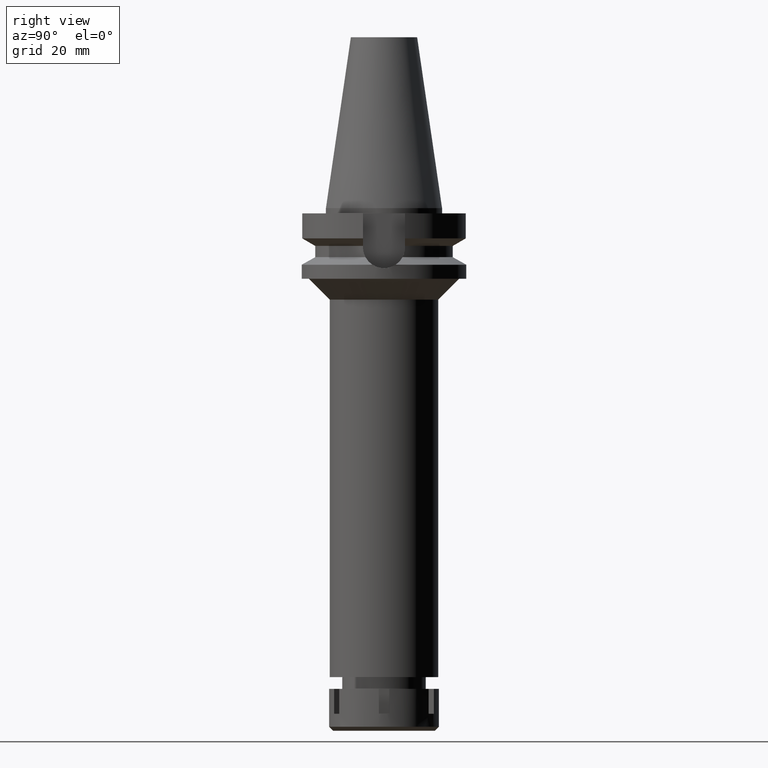
[diagram: clean part render]
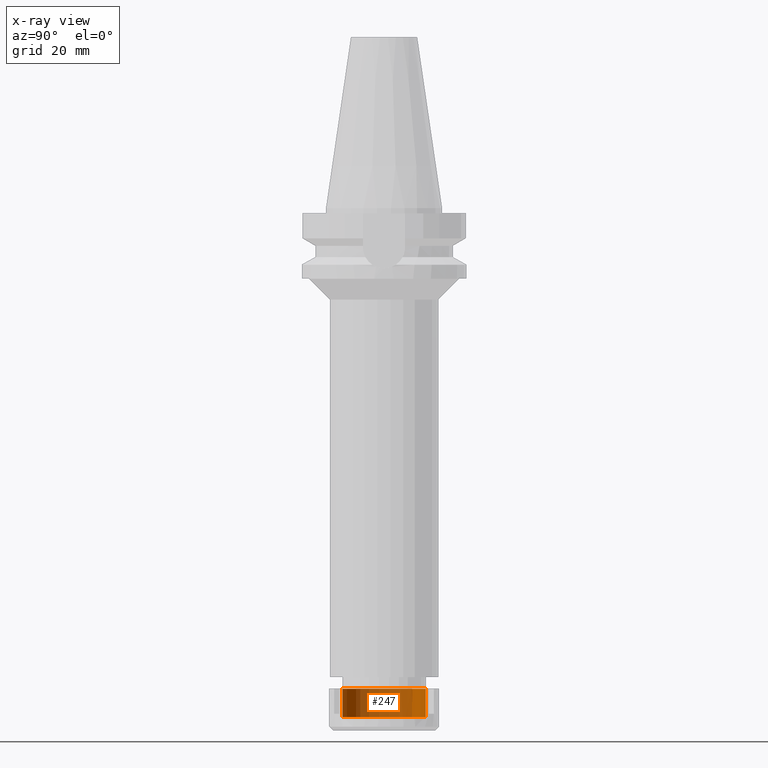
[diagram: x-ray — body ghosted, one internal face saturated and labeled with its STEP entity id]
A machine part, right view, then the same camera in x-ray: the body is ghosted and one INTERNAL B-rep face — a face not visible from any outside direction — is saturated and labeled: STEP entity #247.
In plain terms, the highlighted cylindrical surface (partial cylindrical patch) has radius 16 mm, axis along (0, 0, -1).
Its self-contained STEP definition (entity closure, byte-faithful):
#17 = CARTESIAN_POINT ( 'NONE',  ( 0.0000000000000000000, 16.00000000000000000, -10.80000000000000071 ) ) ;
#195 = EDGE_LOOP ( 'NONE', ( #390, #650, #2595, #1766 ) ) ;
#220 = DIRECTION ( 'NONE',  ( 0.0000000000000000000, -1.000000000000000000, 0.0000000000000000000 ) ) ;
#247 = ADVANCED_FACE ( 'NONE', ( #919 ), #618, .F. ) ;
#307 = LINE ( 'NONE', #17, #1212 ) ;
#351 = DIRECTION ( 'NONE',  ( 0.0000000000000000000, 0.0000000000000000000, 1.000000000000000000 ) ) ;
#370 = VERTEX_POINT ( 'NONE', #3143 ) ;
#390 = ORIENTED_EDGE ( 'NONE', *, *, #2261, .T. ) ;
#500 = EDGE_CURVE ( 'NONE', #2960, #370, #307, .T. ) ;
#566 = CARTESIAN_POINT ( 'NONE',  ( 0.0000000000000000000, 0.0000000000000000000, 0.0000000000000000000 ) ) ;
#618 = CYLINDRICAL_SURFACE ( 'NONE', #969, 16.00000000000000000 ) ;
#650 = ORIENTED_EDGE ( 'NONE', *, *, #3463, .F. ) ;
#738 = DIRECTION ( 'NONE',  ( 0.0000000000000000000, 0.0000000000000000000, 1.000000000000000000 ) ) ;
#874 = VERTEX_POINT ( 'NONE', #3394 ) ;
#892 = CARTESIAN_POINT ( 'NONE',  ( 0.0000000000000000000, 0.0000000000000000000, 0.0000000000000000000 ) ) ;
#919 = FACE_OUTER_BOUND ( 'NONE', #195, .T. ) ;
#969 = AXIS2_PLACEMENT_3D ( 'NONE', #892, #1738, #1466 ) ;
#1088 = DIRECTION ( 'NONE',  ( 0.0000000000000000000, 0.0000000000000000000, -1.000000000000000000 ) ) ;
#1212 = VECTOR ( 'NONE', #351, 1000.000000000000000 ) ;
#1354 = CARTESIAN_POINT ( 'NONE',  ( 0.0000000000000000000, -16.00000000000000000, -10.80000000000000071 ) ) ;
#1381 = DIRECTION ( 'NONE',  ( 0.0000000000000000000, 1.000000000000000000, 0.0000000000000000000 ) ) ;
#1389 = CIRCLE ( 'NONE', #2236, 16.00000000000000000 ) ;
#1466 = DIRECTION ( 'NONE',  ( 0.0000000000000000000, -1.000000000000000000, 0.0000000000000000000 ) ) ;
#1595 = LINE ( 'NONE', #1354, #3604 ) ;
#1738 = DIRECTION ( 'NONE',  ( 0.0000000000000000000, 0.0000000000000000000, -1.000000000000000000 ) ) ;
#1766 = ORIENTED_EDGE ( 'NONE', *, *, #500, .T. ) ;
#1839 = CARTESIAN_POINT ( 'NONE',  ( 0.0000000000000000000, 16.00000000000000000, -10.80000000000000071 ) ) ;
#2196 = CARTESIAN_POINT ( 'NONE',  ( 0.0000000000000000000, 0.0000000000000000000, -10.80000000000000071 ) ) ;
#2236 = AXIS2_PLACEMENT_3D ( 'NONE', #566, #3626, #1381 ) ;
#2261 = EDGE_CURVE ( 'NONE', #370, #874, #1389, .T. ) ;
#2262 = EDGE_CURVE ( 'NONE', #2469, #2960, #3591, .T. ) ;
#2332 = CARTESIAN_POINT ( 'NONE',  ( 0.0000000000000000000, -16.00000000000000000, -10.80000000000000071 ) ) ;
#2469 = VERTEX_POINT ( 'NONE', #2332 ) ;
#2581 = AXIS2_PLACEMENT_3D ( 'NONE', #2196, #1088, #220 ) ;
#2595 = ORIENTED_EDGE ( 'NONE', *, *, #2262, .T. ) ;
#2960 = VERTEX_POINT ( 'NONE', #1839 ) ;
#3143 = CARTESIAN_POINT ( 'NONE',  ( 0.0000000000000000000, 16.00000000000000000, 0.0000000000000000000 ) ) ;
#3394 = CARTESIAN_POINT ( 'NONE',  ( 0.0000000000000000000, -16.00000000000000000, 0.0000000000000000000 ) ) ;
#3463 = EDGE_CURVE ( 'NONE', #2469, #874, #1595, .T. ) ;
#3591 = CIRCLE ( 'NONE', #2581, 16.00000000000000000 ) ;
#3604 = VECTOR ( 'NONE', #738, 1000.000000000000000 ) ;
#3626 = DIRECTION ( 'NONE',  ( 0.0000000000000000000, 0.0000000000000000000, 1.000000000000000000 ) ) ;